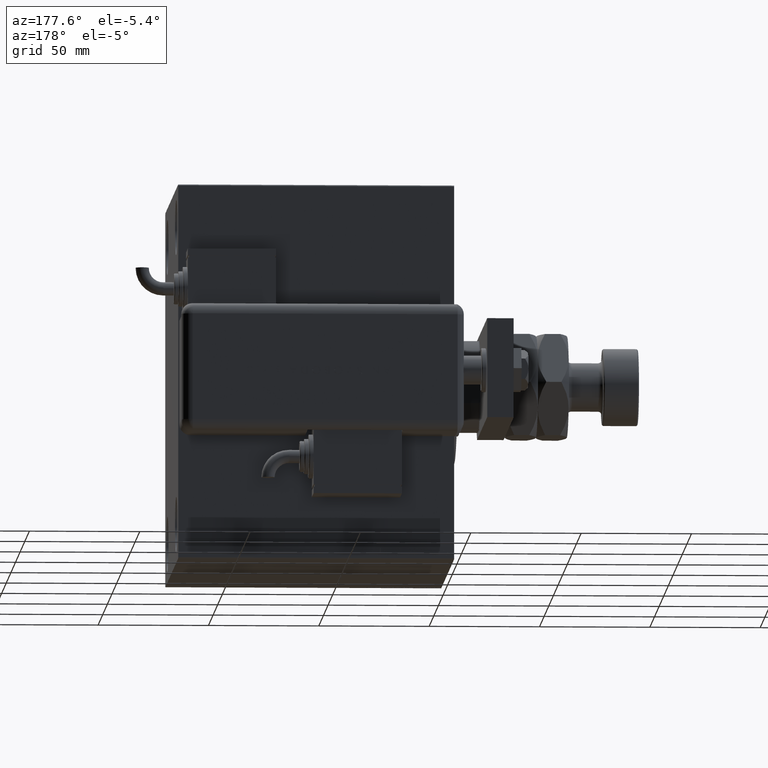
[diagram: clean part render]
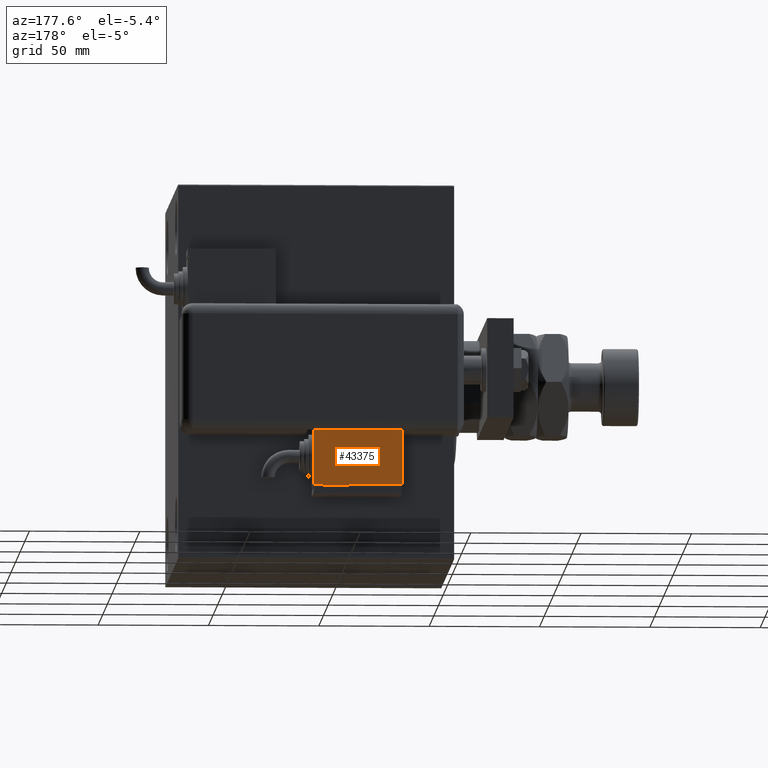
[diagram: same view with one face highlighted and labeled with its STEP entity id]
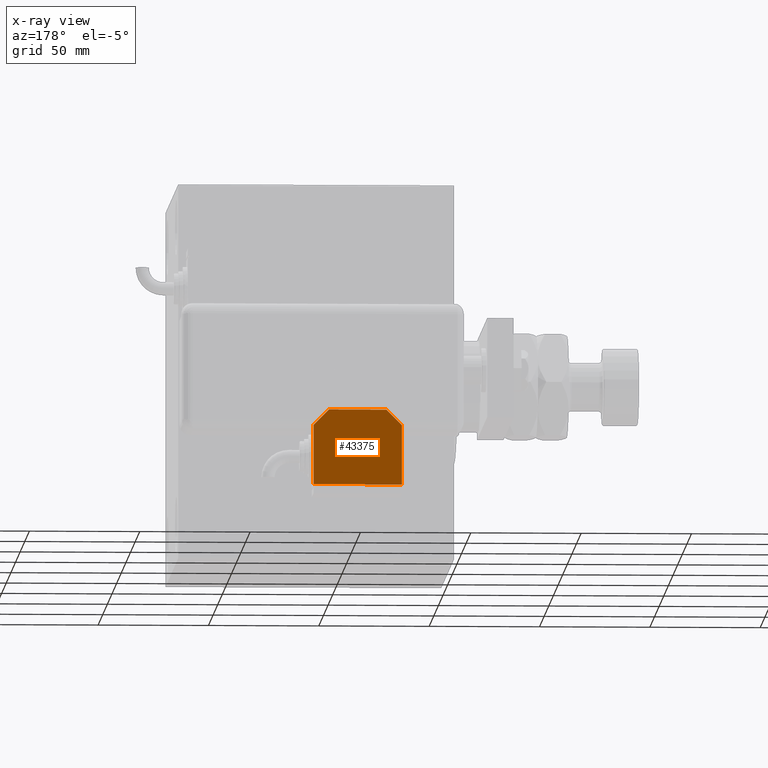
[diagram: x-ray of the same camera — body ghosted, the highlighted face saturated]
A machine part, auxiliary view. The second image highlights one B-rep face of the part: STEP entity #43375.
The next image is the same camera in x-ray: the body ghosted, the highlighted face saturated — about 0% of this face is hidden behind the body in this view.
In plain terms, the highlighted planar face has unit normal (-0, 1, -0).
Its self-contained STEP definition (entity closure, byte-faithful):
#647 = LINE ( 'NONE', #1574, #31138 ) ;
#1574 = CARTESIAN_POINT ( 'NONE',  ( -19.99999999999994316, -13.49999999999996092, 10.00000000000000000 ) ) ;
#1723 = LINE ( 'NONE', #2025, #46242 ) ;
#1844 = ORIENTED_EDGE ( 'NONE', *, *, #25212, .T. ) ;
#2025 = CARTESIAN_POINT ( 'NONE',  ( 9.999999999999984013, 23.50000000000009592, 10.00000000000000000 ) ) ;
#2574 = PLANE ( 'NONE',  #33531 ) ;
#4151 = EDGE_CURVE ( 'NONE', #46916, #14012, #34816, .T. ) ;
#5593 = VERTEX_POINT ( 'NONE', #23510 ) ;
#6223 = CARTESIAN_POINT ( 'NONE',  ( 12.99999999999999112, 20.50000000000009592, 10.00000000000000000 ) ) ;
#6571 = DIRECTION ( 'NONE',  ( 1.000000000000000000, 0.000000000000000000, 0.000000000000000000 ) ) ;
#6950 = FACE_OUTER_BOUND ( 'NONE', #28644, .T. ) ;
#7064 = EDGE_CURVE ( 'NONE', #30438, #33081, #27404, .T. ) ;
#11148 = CARTESIAN_POINT ( 'NONE',  ( 20.00000000000005329, -13.49999999999996092, 10.00000000000000000 ) ) ;
#11159 = DIRECTION ( 'NONE',  ( -1.284980352575421081E-16, -1.000000000000000000, -0.000000000000000000 ) ) ;
#12211 = EDGE_CURVE ( 'NONE', #5593, #59496, #22673, .T. ) ;
#12895 = ORIENTED_EDGE ( 'NONE', *, *, #4151, .T. ) ;
#14012 = VERTEX_POINT ( 'NONE', #37374 ) ;
#17997 = CARTESIAN_POINT ( 'NONE',  ( -19.99999999999994316, -13.49999999999996092, 10.00000000000000000 ) ) ;
#18686 = VECTOR ( 'NONE', #44299, 1000.000000000000000 ) ;
#20677 = CARTESIAN_POINT ( 'NONE',  ( 0.000000000000000000, 0.000000000000000000, 10.00000000000000000 ) ) ;
#21830 = EDGE_CURVE ( 'NONE', #14012, #36101, #1723, .T. ) ;
#22673 = LINE ( 'NONE', #17997, #47998 ) ;
#23056 = CARTESIAN_POINT ( 'NONE',  ( -19.99999999999993960, 13.49999999999986500, 10.00000000000000000 ) ) ;
#23510 = CARTESIAN_POINT ( 'NONE',  ( -19.99999999999993960, 2.569960705150834076E-15, 10.00000000000000000 ) ) ;
#23626 = ORIENTED_EDGE ( 'NONE', *, *, #45680, .T. ) ;
#24970 = VECTOR ( 'NONE', #56325, 1000.000000000000000 ) ;
#25212 = EDGE_CURVE ( 'NONE', #33081, #5593, #53766, .T. ) ;
#27404 = LINE ( 'NONE', #23056, #24970 ) ;
#27408 = CARTESIAN_POINT ( 'NONE',  ( 20.00000000000005329, -13.49999999999996092, 10.00000000000000000 ) ) ;
#28644 = EDGE_LOOP ( 'NONE', ( #33614, #23626, #35254, #1844, #51580, #42461, #12895 ) ) ;
#29083 = LINE ( 'NONE', #29389, #18686 ) ;
#29322 = EDGE_CURVE ( 'NONE', #59496, #46916, #647, .T. ) ;
#29389 = CARTESIAN_POINT ( 'NONE',  ( -10.00000000000004086, 20.50000000000009592, 10.00000000000000000 ) ) ;
#29520 = VECTOR ( 'NONE', #11159, 1000.000000000000000 ) ;
#30126 = DIRECTION ( 'NONE',  ( 1.284980352575412699E-16, 1.000000000000000000, 0.000000000000000000 ) ) ;
#30438 = VERTEX_POINT ( 'NONE', #39227 ) ;
#31138 = VECTOR ( 'NONE', #6571, 1000.000000000000000 ) ;
#32959 = VECTOR ( 'NONE', #30126, 1000.000000000000000 ) ;
#33081 = VERTEX_POINT ( 'NONE', #38199 ) ;
#33531 = AXIS2_PLACEMENT_3D ( 'NONE', #20677, #44899, #45212 ) ;
#33614 = ORIENTED_EDGE ( 'NONE', *, *, #21830, .T. ) ;
#34816 = LINE ( 'NONE', #11148, #32959 ) ;
#35254 = ORIENTED_EDGE ( 'NONE', *, *, #7064, .T. ) ;
#36101 = VERTEX_POINT ( 'NONE', #6223 ) ;
#37374 = CARTESIAN_POINT ( 'NONE',  ( 20.00000000000005684, 13.50000000000003730, 10.00000000000000000 ) ) ;
#38199 = CARTESIAN_POINT ( 'NONE',  ( -19.99999999999993960, 13.49999999999986500, 10.00000000000000000 ) ) ;
#39227 = CARTESIAN_POINT ( 'NONE',  ( -12.99999999999994138, 20.50000000000009592, 10.00000000000000000 ) ) ;
#42461 = ORIENTED_EDGE ( 'NONE', *, *, #29322, .T. ) ;
#43375 = ADVANCED_FACE ( 'NONE', ( #6950 ), #2574, .T. ) ;
#44299 = DIRECTION ( 'NONE',  ( -1.000000000000000000, 0.000000000000000000, 0.000000000000000000 ) ) ;
#44899 = DIRECTION ( 'NONE',  ( 0.000000000000000000, 0.000000000000000000, 1.000000000000000000 ) ) ;
#45212 = DIRECTION ( 'NONE',  ( 1.000000000000000000, 0.000000000000000000, -0.000000000000000000 ) ) ;
#45680 = EDGE_CURVE ( 'NONE', #36101, #30438, #29083, .T. ) ;
#46242 = VECTOR ( 'NONE', #54622, 1000.000000000000114 ) ;
#46916 = VERTEX_POINT ( 'NONE', #27408 ) ;
#47998 = VECTOR ( 'NONE', #51263, 1000.000000000000000 ) ;
#51263 = DIRECTION ( 'NONE',  ( -1.284980352575421081E-16, -1.000000000000000000, -0.000000000000000000 ) ) ;
#51580 = ORIENTED_EDGE ( 'NONE', *, *, #12211, .T. ) ;
#53766 = LINE ( 'NONE', #54690, #29520 ) ;
#54622 = DIRECTION ( 'NONE',  ( -0.7071067811865479058, 0.7071067811865470176, -0.000000000000000000 ) ) ;
#54690 = CARTESIAN_POINT ( 'NONE',  ( -19.99999999999994316, -13.49999999999996092, 10.00000000000000000 ) ) ;
#56325 = DIRECTION ( 'NONE',  ( -0.7071067811865356934, -0.7071067811865593411, -0.000000000000000000 ) ) ;
#59496 = VERTEX_POINT ( 'NONE', #61513 ) ;
#61513 = CARTESIAN_POINT ( 'NONE',  ( -19.99999999999994316, -13.49999999999996092, 10.00000000000000000 ) ) ;